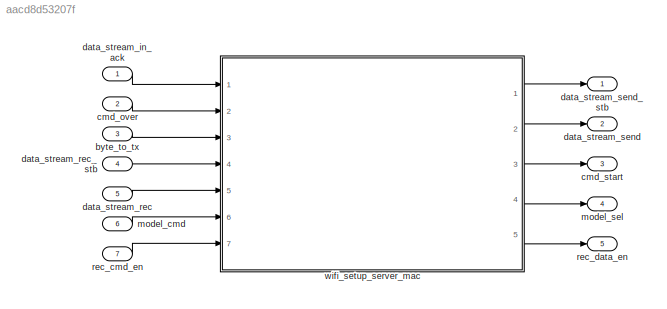
MODEL slx_aacd8d53207f
KIND model
CONFIG AbsTol = auto
CONFIG FixedStep = auto
CONFIG MaxStep = auto
CONFIG MinStep = auto
CONFIG RelTol = 1e-3
CONFIG SampleTimeConstraint = Unconstrained
CONFIG Solver = VariableStepAuto
CONFIG SolverMode = Auto
CONFIG SolverName = VariableStepAuto
CONFIG StartTime = 0.0
CONFIG StopTime = 10.0
BLOCK [Inport] byte_to_tx
  IconDisplay = Port number
  Port = 3
  SampleTime = 0
BLOCK [Inport] cmd_over
  IconDisplay = Port number
  Port = 2
  SampleTime = 0
BLOCK [Outport] cmd_start
  IconDisplay = Port number
  Port = 3
BLOCK [Inport] data_stream_in_ack
  IconDisplay = Port number
  SampleTime = 0
BLOCK [Inport] data_stream_rec
  IconDisplay = Port number
  Port = 5
  SampleTime = 0
BLOCK [Inport] data_stream_rec_stb
  IconDisplay = Port number
  Port = 4
  SampleTime = 0
BLOCK [Outport] data_stream_send
  IconDisplay = Port number
  Port = 2
BLOCK [Outport] data_stream_send_stb
  IconDisplay = Port number
BLOCK [Inport] model_cmd
  IconDisplay = Port number
  Port = 6
  SampleTime = 0
BLOCK [Outport] model_sel
  IconDisplay = Port number
  Port = 4
BLOCK [Inport] rec_cmd_en
  IconDisplay = Port number
  Port = 7
  SampleTime = 0
BLOCK [Outport] rec_data_en
  IconDisplay = Port number
  Port = 5
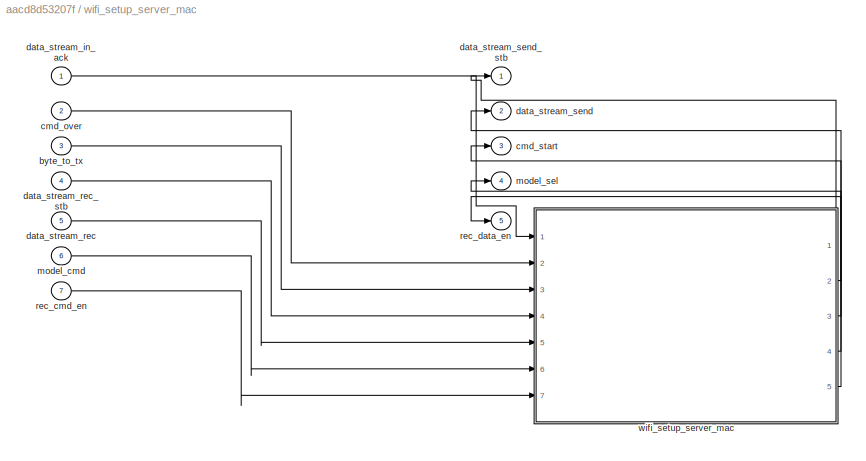
BLOCK [SubSystem] wifi_setup_server_mac
  Ports = [7, 5]
  RequestExecContextInheritance = off
  Variant = off
BLOCK [Inport] wifi_setup_server_mac/byte_to_tx
  IconDisplay = Port number
  Port = 3
  SampleTime = 0
BLOCK [Inport] wifi_setup_server_mac/cmd_over
  IconDisplay = Port number
  Port = 2
  SampleTime = 0
BLOCK [Outport] wifi_setup_server_mac/cmd_start
  IconDisplay = Port number
  Port = 3
BLOCK [Inport] wifi_setup_server_mac/data_stream_in_ack
  IconDisplay = Port number
  SampleTime = 0
BLOCK [Inport] wifi_setup_server_mac/data_stream_rec
  IconDisplay = Port number
  Port = 5
  SampleTime = 0
BLOCK [Inport] wifi_setup_server_mac/data_stream_rec_stb
  IconDisplay = Port number
  Port = 4
  SampleTime = 0
BLOCK [Outport] wifi_setup_server_mac/data_stream_send
  IconDisplay = Port number
  Port = 2
BLOCK [Outport] wifi_setup_server_mac/data_stream_send_stb
  IconDisplay = Port number
BLOCK [Inport] wifi_setup_server_mac/model_cmd
  IconDisplay = Port number
  Port = 6
  SampleTime = 0
BLOCK [Outport] wifi_setup_server_mac/model_sel
  IconDisplay = Port number
  Port = 4
BLOCK [Inport] wifi_setup_server_mac/rec_cmd_en
  IconDisplay = Port number
  Port = 7
  SampleTime = 0
BLOCK [Outport] wifi_setup_server_mac/rec_data_en
  IconDisplay = Port number
  Port = 5
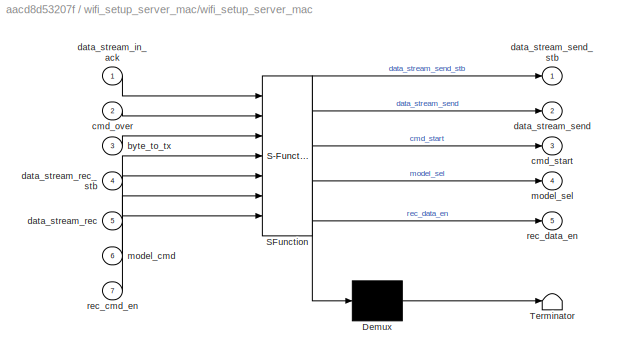
BLOCK [SubSystem] wifi_setup_server_mac/wifi_setup_server_mac
  ErrorFcn = Stateflow.Translate.translate
  PermitHierarchicalResolution = ExplicitOnly
  Ports = [7, 5]
  RequestExecContextInheritance = off
  SFBlockType = Chart
  TreatAsAtomicUnit = on
  Variant = off
BLOCK [Demux] wifi_setup_server_mac/wifi_setup_server_mac/ Demux 
  Outputs = 1
  Ports = [1, 1]
BLOCK [S-Function] wifi_setup_server_mac/wifi_setup_server_mac/ SFunction 
  EnableBusSupport = on
  FunctionName = sf_sfun
  PortCounts = [7 6]
  Ports = [7, 6]
  SFunctionDeploymentMode = off
  Tag = Stateflow S-Function gm_wifi_server 3
BLOCK [Terminator] wifi_setup_server_mac/wifi_setup_server_mac/ Terminator 
BLOCK [Inport] wifi_setup_server_mac/wifi_setup_server_mac/byte_to_tx
  IconDisplay = Port number
  Port = 3
BLOCK [Inport] wifi_setup_server_mac/wifi_setup_server_mac/cmd_over
  IconDisplay = Port number
  Port = 2
BLOCK [Outport] wifi_setup_server_mac/wifi_setup_server_mac/cmd_start
  IconDisplay = Port number
  Port = 3
BLOCK [Inport] wifi_setup_server_mac/wifi_setup_server_mac/data_stream_in_ack
  IconDisplay = Port number
BLOCK [Inport] wifi_setup_server_mac/wifi_setup_server_mac/data_stream_rec
  IconDisplay = Port number
  Port = 5
BLOCK [Inport] wifi_setup_server_mac/wifi_setup_server_mac/data_stream_rec_stb
  IconDisplay = Port number
  Port = 4
BLOCK [Outport] wifi_setup_server_mac/wifi_setup_server_mac/data_stream_send
  IconDisplay = Port number
  Port = 2
BLOCK [Outport] wifi_setup_server_mac/wifi_setup_server_mac/data_stream_send_stb
  IconDisplay = Port number
BLOCK [Inport] wifi_setup_server_mac/wifi_setup_server_mac/model_cmd
  IconDisplay = Port number
  Port = 6
BLOCK [Outport] wifi_setup_server_mac/wifi_setup_server_mac/model_sel
  IconDisplay = Port number
  Port = 4
BLOCK [Inport] wifi_setup_server_mac/wifi_setup_server_mac/rec_cmd_en
  IconDisplay = Port number
  Port = 7
BLOCK [Outport] wifi_setup_server_mac/wifi_setup_server_mac/rec_data_en
  IconDisplay = Port number
  Port = 5
LINE byte_to_tx:1 -> wifi_setup_server_mac:3
LINE cmd_over:1 -> wifi_setup_server_mac:2
LINE data_stream_in_ack:1 -> wifi_setup_server_mac:1
LINE data_stream_rec:1 -> wifi_setup_server_mac:5
LINE data_stream_rec_stb:1 -> wifi_setup_server_mac:4
LINE model_cmd:1 -> wifi_setup_server_mac:6
LINE rec_cmd_en:1 -> wifi_setup_server_mac:7
LINE wifi_setup_server_mac/byte_to_tx:1 -> wifi_setup_server_mac/wifi_setup_server_mac:3
LINE wifi_setup_server_mac/cmd_over:1 -> wifi_setup_server_mac/wifi_setup_server_mac:2
LINE wifi_setup_server_mac/data_stream_in_ack:1 -> wifi_setup_server_mac/wifi_setup_server_mac:1
LINE wifi_setup_server_mac/data_stream_rec:1 -> wifi_setup_server_mac/wifi_setup_server_mac:5
LINE wifi_setup_server_mac/data_stream_rec_stb:1 -> wifi_setup_server_mac/wifi_setup_server_mac:4
LINE wifi_setup_server_mac/model_cmd:1 -> wifi_setup_server_mac/wifi_setup_server_mac:6
LINE wifi_setup_server_mac/rec_cmd_en:1 -> wifi_setup_server_mac/wifi_setup_server_mac:7
LINE wifi_setup_server_mac/wifi_setup_server_mac:1 -> wifi_setup_server_mac/data_stream_send_stb:1
LINE wifi_setup_server_mac/wifi_setup_server_mac:2 -> wifi_setup_server_mac/data_stream_send:1
LINE wifi_setup_server_mac/wifi_setup_server_mac:3 -> wifi_setup_server_mac/cmd_start:1
LINE wifi_setup_server_mac/wifi_setup_server_mac:4 -> wifi_setup_server_mac/model_sel:1
LINE wifi_setup_server_mac/wifi_setup_server_mac:5 -> wifi_setup_server_mac/rec_data_en:1
LINE wifi_setup_server_mac:1 -> data_stream_send_stb:1
LINE wifi_setup_server_mac:2 -> data_stream_send:1
LINE wifi_setup_server_mac:3 -> cmd_start:1
LINE wifi_setup_server_mac:4 -> model_sel:1
LINE wifi_setup_server_mac:5 -> rec_data_en:1
CHART wifi_setup_server_mac/wifi_setup_server_mac states=30 transitions=88
  STATE_LABEL 'initial\nentry:\n%outputs\ndata_stream_send_stb=0;\ndata_stream_send=0;\ncmd_start=0;\nmodel_sel=0;\nrec_data_en=0;\n%local variables\ncnt_wait=0;\ncnt_halt=0;'
  STATE_LABEL 'Tran1_A\nentry:\ndata_stream_send_stb=1;\ndata_stream_send=65;%A\ncnt_wait=0;\ncnt_halt=0;'
  STATE_LABEL 'Tran1_T\nentry:\ndata_stream_send_stb=1;\ndata_stream_send=84;%T\ncnt_wait=0;\ncnt_halt=0;'
  STATE_LABEL 'Tran1_Enter1\nentry:\ndata_stream_send_stb=1;\ndata_stream_send=10;%/n\ncnt_wait=0;\ncnt_halt=0;'
  STATE_LABEL 'Tran1_Enter\nentry:\ndata_stream_send_stb=1;\ndata_stream_send=13;%/r\ncnt_wait=0;\ncnt_halt=0;'
  STATE_LABEL 'send1_finish\nentry:\ndata_stream_send_stb=0;\ndata_stream_send=0;\ncnt_wait=0;\ncnt_halt=0;'
  STATE_LABEL 'wait1_cnt\ncnt_wait=cnt_wait+1;\ncnt_halt=0;'
  STATE_LABEL 'send_cmd1\nentry:\n%output\ncmd_start=1;\ndata_stream_send_stb=0;\ndata_stream_send=byte_to_tx;\n%local\n%cnt_wait=0;\n%cnt_halt=0;'
  STATE_LABEL 'send_cmd2\nentry:\n%output\ncmd_start=1;\ndata_stream_send_stb=1;\ndata_stream_send=byte_to_tx;'
  STATE_LABEL 'wait_cmd\nentry:\ncmd_start=1;\ndata_stream_send_stb=1;\ndata_stream_send=byte_to_tx;\n'
  STATE_LABEL 'device_OK\nentry:\n%output, start from 1\nmodel_sel=model_sel+1;\ncnt_wait=0;'
  STATE_LABEL 'send_cmd_over\nentry:\ncmd_start=0;\ndata_stream_send_stb=0;\ndata_stream_send=0;'
  STATE_LABEL 'Tran2_Enter\nentry:\ndata_stream_send_stb=1;\ndata_stream_send=13;%/r'
  STATE_LABEL 'Tran2_Enter1\nentry:\ndata_stream_send_stb=1;\ndata_stream_send=10;%/r'
  STATE_LABEL 'send2_finish\nentry:\ndata_stream_send_stb=0;\ndata_stream_send=0;'
  STATE_LABEL 'device_config_OK\nentry:\nmodel_sel=6;\ncnt_halt=0;'
  STATE_LABEL 'wait_port\nentry:\nrec_data_en=0;\ncnt_halt=cnt_halt+1;'
  STATE_LABEL 'wait_server_rec_S\nentry:\ncnt_halt=cnt_halt+1;'
  STATE_LABEL 'wait_server_rec_T\nentry:\nrec_data_en=1;\n%when get T, begin rec data'
  STATE_LABEL 'rec_data\nentry:\ncnt_halt=cnt_halt+1;'
  STATE_LABEL 'pre_rec_data\n'
  STATE_LABEL 'send_word\nentry:\ncmd_start=1;\ndata_stream_send_stb=0;\ndata_stream_send=byte_to_tx;\ncnt_halt=0;'
  STATE_LABEL 'send_word1\nentry:\ncmd_start=1;\ndata_stream_send_stb=1;\ndata_stream_send=byte_to_tx;'
  STATE_LABEL 'wait_data\nentry:\ncmd_start=1;\ndata_stream_send_stb=1;\ndata_stream_send=byte_to_tx;'
  STATE_LABEL 'begin_send_data\nentry:\nmodel_sel=7;\ncnt_halt=0;'
  STATE_LABEL 'send_data_over\nentry:\ncmd_start=0;\ndata_stream_send_stb=0;\ndata_stream_send=0;'
  STATE_LABEL 'Tran3_Enter\nentry:\ndata_stream_send_stb=1;\ndata_stream_send=13;%/r'
  STATE_LABEL 'Tran3_Enter1\nentry:\ndata_stream_send_stb=1;\ndata_stream_send=10;%/r'
  STATE_LABEL 'send3_finish\nentry:\ndata_stream_send_stb=0;\ndata_stream_send=0;'
  STATE_LABEL 'data_send_over\nentry:\nmodel_sel=7;\ncnt_halt=0;'
